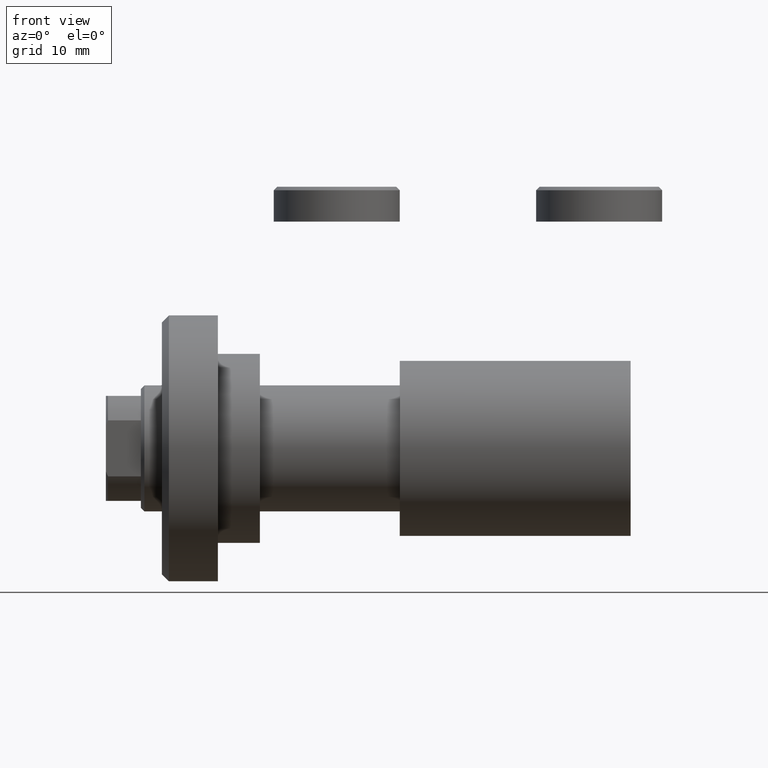
[diagram: clean part render]
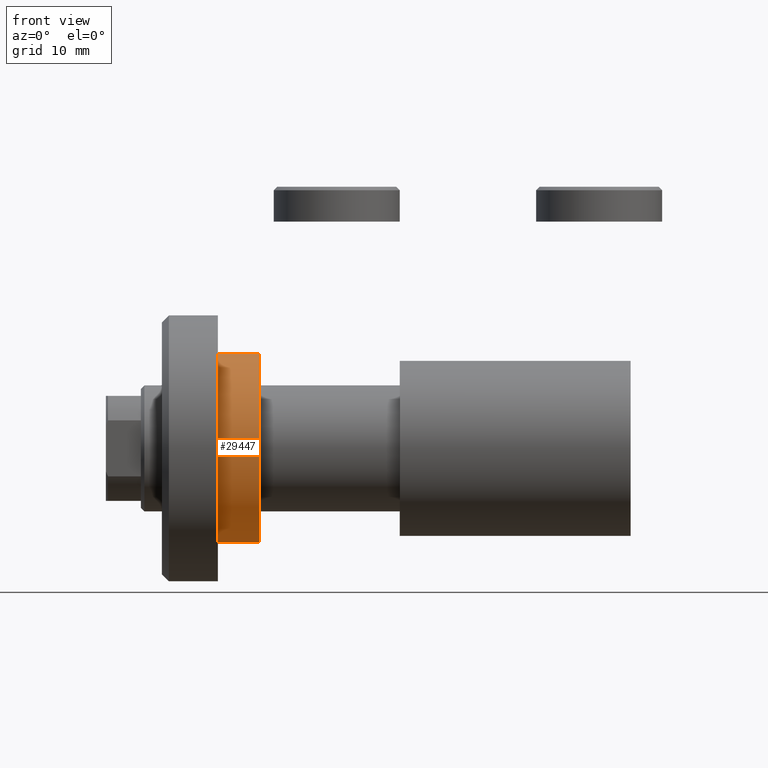
[diagram: same view with one face highlighted and labeled with its STEP entity id]
A machine part, front view. The second image highlights one B-rep face of the part: STEP entity #29447.
In plain terms, the highlighted cylindrical surface (partial cylindrical patch) has radius 13.5 mm, axis along (-1, 0, 0).
Its self-contained STEP definition (entity closure, byte-faithful):
#11 = AXIS2_PLACEMENT_3D ( 'NONE', #1462, #15524, #36982 ) ;
#1098 = CIRCLE ( 'NONE', #15087, 13.50000000000000000 ) ;
#1462 = CARTESIAN_POINT ( 'NONE',  ( -11.00000000000000000, 0.000000000000000000, 0.000000000000000000 ) ) ;
#2539 = VECTOR ( 'NONE', #16613, 1000.000000000000000 ) ;
#3242 = CARTESIAN_POINT ( 'NONE',  ( -11.00000000000000000, 0.000000000000000000, -13.50000000000000000 ) ) ;
#3726 = EDGE_LOOP ( 'NONE', ( #29993, #24209, #11953, #14940 ) ) ;
#4329 = VERTEX_POINT ( 'NONE', #33989 ) ;
#11481 = CARTESIAN_POINT ( 'NONE',  ( -11.00000000000000000, 1.653273178848926867E-15, 13.50000000000000000 ) ) ;
#11953 = ORIENTED_EDGE ( 'NONE', *, *, #13002, .T. ) ;
#13002 = EDGE_CURVE ( 'NONE', #28244, #4329, #1098, .T. ) ;
#14391 = DIRECTION ( 'NONE',  ( 0.000000000000000000, 0.000000000000000000, 1.000000000000000000 ) ) ;
#14940 = ORIENTED_EDGE ( 'NONE', *, *, #41464, .F. ) ;
#15087 = AXIS2_PLACEMENT_3D ( 'NONE', #17081, #44538, #30474 ) ;
#15524 = DIRECTION ( 'NONE',  ( 1.000000000000000000, -0.000000000000000000, -0.000000000000000000 ) ) ;
#16221 = FACE_OUTER_BOUND ( 'NONE', #3726, .T. ) ;
#16613 = DIRECTION ( 'NONE',  ( 1.000000000000000000, -0.000000000000000000, -0.000000000000000000 ) ) ;
#17081 = CARTESIAN_POINT ( 'NONE',  ( -5.000000000000000000, 0.000000000000000000, 0.000000000000000000 ) ) ;
#21987 = CARTESIAN_POINT ( 'NONE',  ( -5.000000000000000000, 1.653273178848926867E-15, 13.50000000000000000 ) ) ;
#22450 = CYLINDRICAL_SURFACE ( 'NONE', #11, 13.50000000000000000 ) ;
#22539 = LINE ( 'NONE', #11481, #43679 ) ;
#23218 = EDGE_CURVE ( 'NONE', #39409, #44937, #43355, .T. ) ;
#24209 = ORIENTED_EDGE ( 'NONE', *, *, #37768, .T. ) ;
#25704 = CARTESIAN_POINT ( 'NONE',  ( -11.00000000000000000, 1.653273178848926867E-15, 13.50000000000000000 ) ) ;
#26228 = DIRECTION ( 'NONE',  ( 1.000000000000000000, -0.000000000000000000, -0.000000000000000000 ) ) ;
#28112 = LINE ( 'NONE', #38252, #2539 ) ;
#28244 = VERTEX_POINT ( 'NONE', #21987 ) ;
#29447 = ADVANCED_FACE ( 'NONE', ( #16221 ), #22450, .T. ) ;
#29993 = ORIENTED_EDGE ( 'NONE', *, *, #23218, .F. ) ;
#30474 = DIRECTION ( 'NONE',  ( 0.000000000000000000, 0.000000000000000000, 1.000000000000000000 ) ) ;
#33989 = CARTESIAN_POINT ( 'NONE',  ( -5.000000000000000000, 0.000000000000000000, -13.50000000000000000 ) ) ;
#36982 = DIRECTION ( 'NONE',  ( 0.000000000000000000, 0.000000000000000000, -1.000000000000000000 ) ) ;
#37768 = EDGE_CURVE ( 'NONE', #39409, #28244, #22539, .T. ) ;
#38184 = AXIS2_PLACEMENT_3D ( 'NONE', #39729, #39282, #14391 ) ;
#38252 = CARTESIAN_POINT ( 'NONE',  ( -11.00000000000000000, 0.000000000000000000, -13.50000000000000000 ) ) ;
#39282 = DIRECTION ( 'NONE',  ( -1.000000000000000000, 0.000000000000000000, 0.000000000000000000 ) ) ;
#39409 = VERTEX_POINT ( 'NONE', #25704 ) ;
#39729 = CARTESIAN_POINT ( 'NONE',  ( -11.00000000000000000, 0.000000000000000000, 0.000000000000000000 ) ) ;
#41464 = EDGE_CURVE ( 'NONE', #44937, #4329, #28112, .T. ) ;
#43355 = CIRCLE ( 'NONE', #38184, 13.50000000000000000 ) ;
#43679 = VECTOR ( 'NONE', #26228, 1000.000000000000000 ) ;
#44538 = DIRECTION ( 'NONE',  ( -1.000000000000000000, 0.000000000000000000, 0.000000000000000000 ) ) ;
#44937 = VERTEX_POINT ( 'NONE', #3242 ) ;